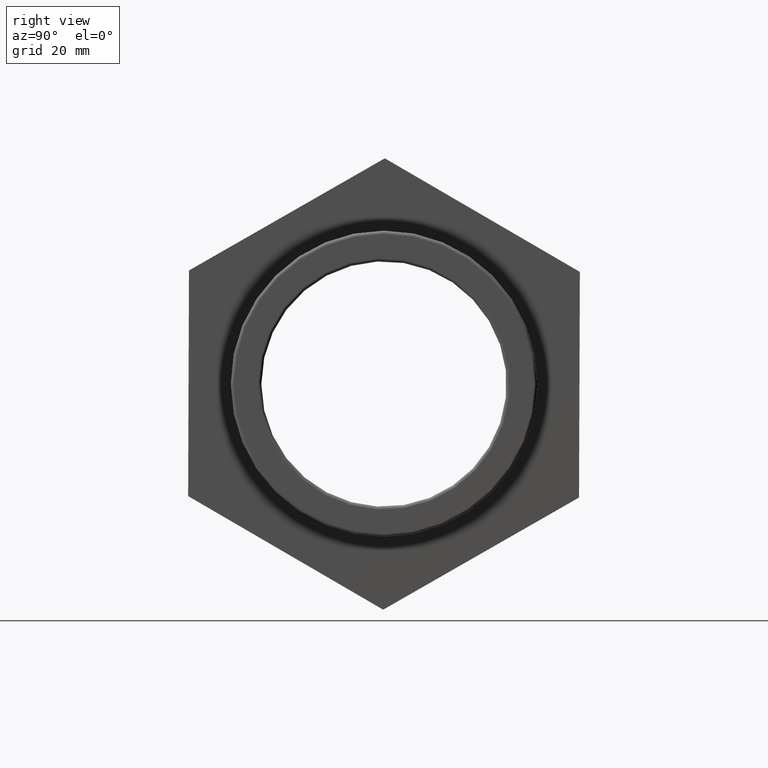
[diagram: clean part render]
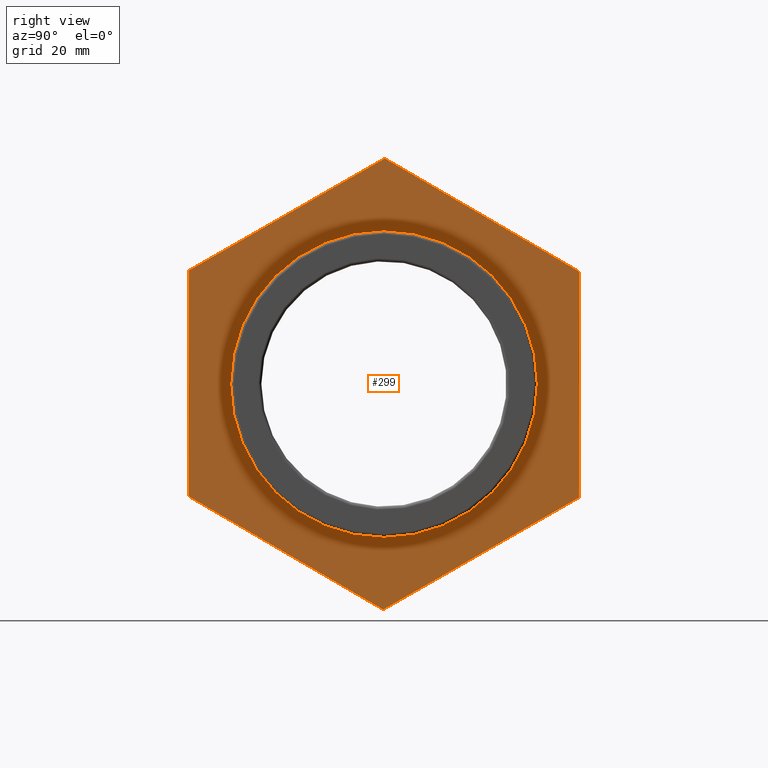
[diagram: same view with one face highlighted and labeled with its STEP entity id]
A machine part, right view. The second image highlights one B-rep face of the part: STEP entity #299.
In plain terms, the highlighted planar face has unit normal (1, 0, 0).
Its self-contained STEP definition (entity closure, byte-faithful):
#33=FACE_BOUND('',#107,.T.);
#40=CIRCLE('',#319,29.807);
#72=FACE_OUTER_BOUND('',#106,.T.);
#106=EDGE_LOOP('',(#254,#255,#256,#257,#258,#259));
#107=EDGE_LOOP('',(#260));
#110=LINE('',#432,#128);
#114=LINE('',#440,#132);
#117=LINE('',#446,#135);
#120=LINE('',#453,#138);
#124=LINE('',#460,#142);
#126=LINE('',#463,#144);
#128=VECTOR('',#342,43.8786204584116);
#132=VECTOR('',#348,43.8786204584116);
#135=VECTOR('',#353,43.8786204584116);
#138=VECTOR('',#358,43.8786204584116);
#142=VECTOR('',#364,43.8786204584116);
#144=VECTOR('',#368,43.8786204584116);
#146=VERTEX_POINT('',#430);
#147=VERTEX_POINT('',#431);
#150=VERTEX_POINT('',#439);
#152=VERTEX_POINT('',#445);
#154=VERTEX_POINT('',#451);
#155=VERTEX_POINT('',#452);
#163=VERTEX_POINT('',#480);
#172=EDGE_CURVE('',#146,#147,#110,.T.);
#176=EDGE_CURVE('',#147,#150,#114,.T.);
#179=EDGE_CURVE('',#150,#152,#117,.T.);
#182=EDGE_CURVE('',#154,#155,#120,.T.);
#186=EDGE_CURVE('',#155,#146,#124,.T.);
#188=EDGE_CURVE('',#152,#154,#126,.T.);
#195=EDGE_CURVE('',#163,#163,#40,.T.);
#254=ORIENTED_EDGE('',*,*,#186,.F.);
#255=ORIENTED_EDGE('',*,*,#182,.F.);
#256=ORIENTED_EDGE('',*,*,#188,.F.);
#257=ORIENTED_EDGE('',*,*,#179,.F.);
#258=ORIENTED_EDGE('',*,*,#176,.F.);
#259=ORIENTED_EDGE('',*,*,#172,.F.);
#260=ORIENTED_EDGE('',*,*,#195,.T.);
#278=PLANE('',#336);
#299=ADVANCED_FACE('',(#72,#33),#278,.T.);
#319=AXIS2_PLACEMENT_3D('',#481,#390,#391);
#336=AXIS2_PLACEMENT_3D('',#506,#424,#425);
#342=DIRECTION('',(-2.43778272755194E-18,0.00361927392861238,0.999993450406666));
#348=DIRECTION('',(-5.84531452177392E-16,0.867829368634533,0.4968623420379));
#353=DIRECTION('',(-5.8209366944984E-16,0.864210094705921,-0.503131108368766));
#358=DIRECTION('',(5.84531452177392E-16,-0.867829368634534,-0.4968623420379));
#364=DIRECTION('',(5.8209366944984E-16,-0.864210094705921,0.503131108368766));
#368=DIRECTION('',(2.437782727552E-18,-0.00361927392861247,-0.999993450406666));
#390=DIRECTION('center_axis',(-1.,-6.73555739531044E-16,0.));
#391=DIRECTION('ref_axis',(0.,0.,1.));
#424=DIRECTION('center_axis',(1.,6.73555739531044E-16,0.));
#425=DIRECTION('ref_axis',(0.,0.,-1.));
#430=CARTESIAN_POINT('',(15.,-38.0791554889776,-21.8016341263585));
#431=CARTESIAN_POINT('',(15.,-37.920346741929,22.076698944933));
#432=CARTESIAN_POINT('',(15.,-37.9600489286912,11.1071156771102));
#439=CARTESIAN_POINT('',(15.,0.158808747048619,43.8783330712915));
#440=CARTESIAN_POINT('',(15.,-9.36098012519579,38.4279245397019));
#445=CARTESIAN_POINT('',(15.,38.0791554889777,21.8016341263585));
#446=CARTESIAN_POINT('',(15.,28.5990688034954,27.3208088625918));
#451=CARTESIAN_POINT('',(15.,37.920346741929,-22.0766989449331));
#452=CARTESIAN_POINT('',(15.,-0.158808747048599,-43.8783330712915));
#453=CARTESIAN_POINT('',(15.,9.36098012519582,-38.4279245397019));
#460=CARTESIAN_POINT('',(15.,-28.5990688034954,-27.3208088625917));
#463=CARTESIAN_POINT('',(15.,37.9997511154534,-0.137532409287268));
#480=CARTESIAN_POINT('',(15.,-29.807,0.));
#481=CARTESIAN_POINT('Origin',(15.,1.76349139077219E-14,0.));
#506=CARTESIAN_POINT('Origin',(15.,-38.,0.));